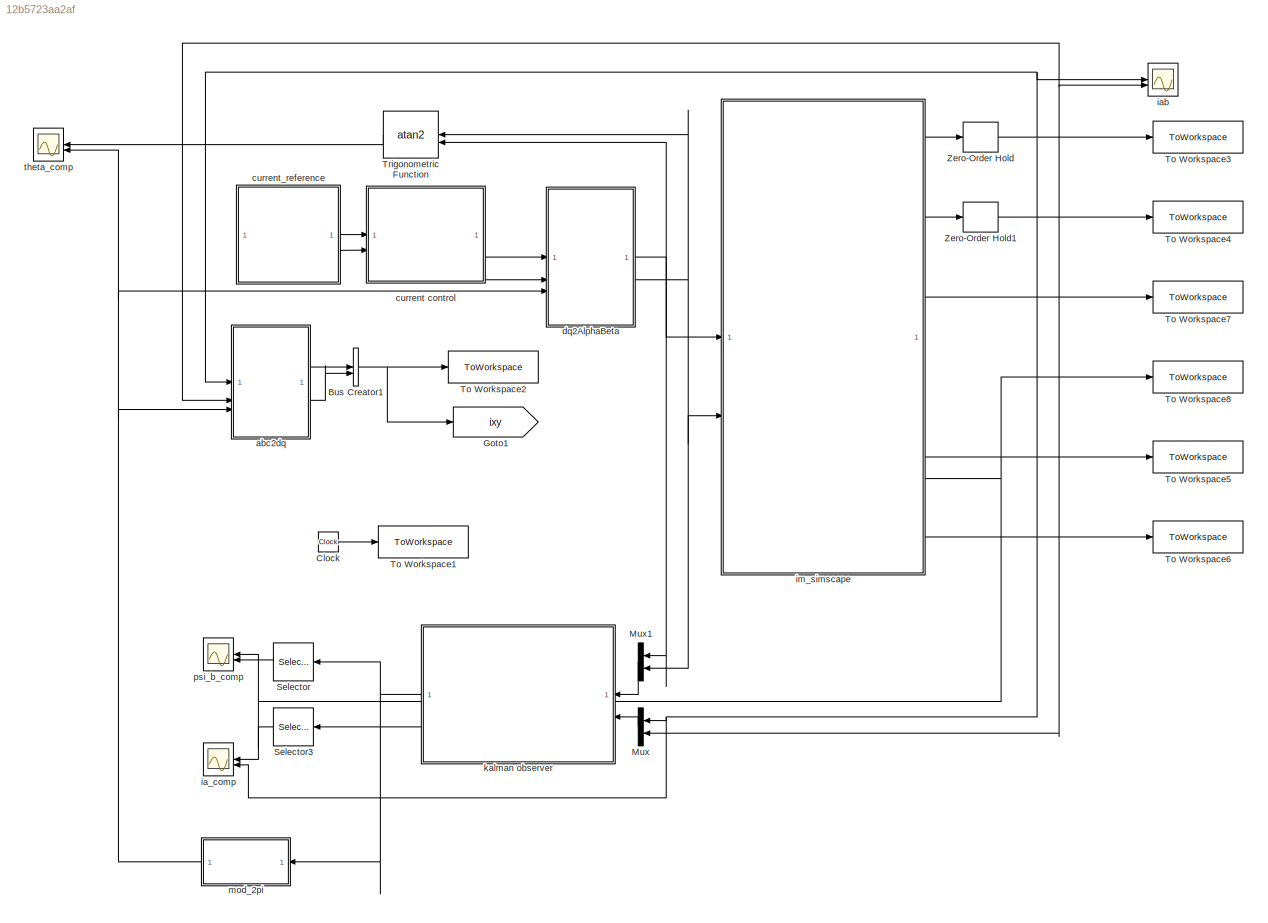
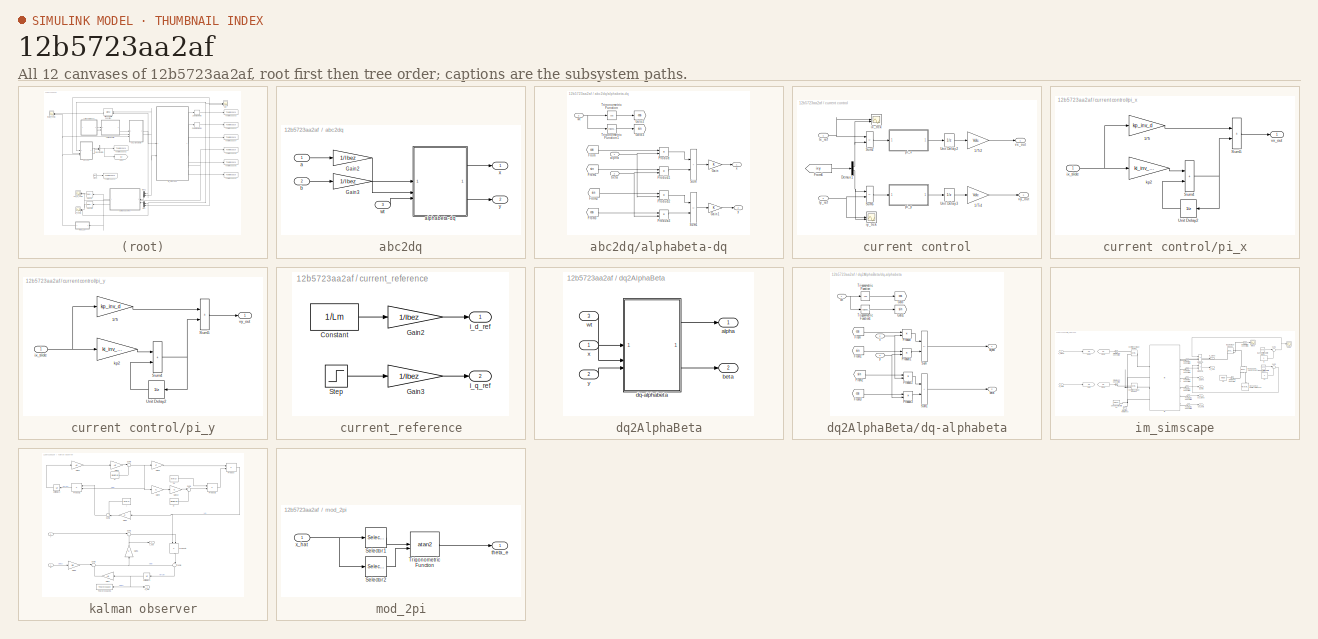
[diagram: thumbnail index - all 12 canvases of the model, root first then tree order]
MODEL slx_12b5723aa2af
KIND model
CONFIG AbsTol = auto
CONFIG EnableMultiTasking = off
CONFIG FixedStep = auto
CONFIG MaxStep = Tc
CONFIG MinStep = auto
CONFIG RelTol = Tc
CONFIG SampleTimeConstraint = Unconstrained
CONFIG SolverName = daessc
CONFIG StartTime = 0.0
CONFIG StopTime = simlength
BLOCK [BusCreator] Bus Creator1
  DisplayOption = bar
  InheritFromInputs = on
  Inputs = 2
BLOCK [Clock] Clock
BLOCK [Goto] Goto1
  GotoTag = ixy
  TagVisibility = global
BLOCK [Mux] Mux
  DisplayOption = bar
  Inputs = 2
  NameLocation = top
BLOCK [Mux] Mux1
  DisplayOption = bar
  Inputs = 2
  NameLocation = top
BLOCK [Selector] Selector
  IndexOptions = Index vector (dialog)
  Indices = 4
  InputPortWidth = 4
  OutputSizes = 1
BLOCK [Selector] Selector3
  IndexOptions = Index vector (dialog)
  Indices = 1
  InputPortWidth = 2
  OutputSizes = 1
BLOCK [ToWorkspace] To Workspace1
  MaxDataPoints = Nc
  SampleTime = Tc
  VariableName = t
BLOCK [ToWorkspace] To Workspace2
  MaxDataPoints = Nc
  SampleTime = Tc
  VariableName = ixy
BLOCK [ToWorkspace] To Workspace3
  MaxDataPoints = Nc
  SampleTime = Tc
  VariableName = is_alpha
BLOCK [ToWorkspace] To Workspace4
  MaxDataPoints = Nc
  SampleTime = Tc
  VariableName = is_beta
BLOCK [ToWorkspace] To Workspace5
  MaxDataPoints = Nc
  SampleTime = Tc
  VariableName = ir_alpha
BLOCK [ToWorkspace] To Workspace6
  MaxDataPoints = Nc
  SampleTime = Tc
  VariableName = ir_beta
BLOCK [ToWorkspace] To Workspace7
  MaxDataPoints = Nc
  SampleTime = Tc
  VariableName = phi_alpha
BLOCK [ToWorkspace] To Workspace8
  MaxDataPoints = Nc
  SampleTime = Tc
  VariableName = phi_beta
BLOCK [Trigonometry] Trigonometric Function
  NameLocation = top
  Operator = atan2
BLOCK [ZeroOrderHold] Zero-Order Hold
  SampleTime = Ts
BLOCK [ZeroOrderHold] Zero-Order Hold1
  SampleTime = Ts
BLOCK [SubSystem] abc2dq
BLOCK [Gain] abc2dq/Gain2
  Gain = 1/Ibez
BLOCK [Gain] abc2dq/Gain3
  Gain = 1/Ibez
BLOCK [Inport] abc2dq/a
BLOCK [SubSystem] abc2dq/alphabeta-dq
BLOCK [From] abc2dq/alphabeta-dq/From
  CloseFcn = tagdialog Close
  GotoTag = cos
BLOCK [From] abc2dq/alphabeta-dq/From1
  CloseFcn = tagdialog Close
  GotoTag = sin
BLOCK [From] abc2dq/alphabeta-dq/From2
  CloseFcn = tagdialog Close
  GotoTag = sin
BLOCK [From] abc2dq/alphabeta-dq/From3
  CloseFcn = tagdialog Close
  GotoTag = cos
BLOCK [Gain] abc2dq/alphabeta-dq/Gain
BLOCK [Gain] abc2dq/alphabeta-dq/Gain1
BLOCK [Goto] abc2dq/alphabeta-dq/Goto2
  GotoTag = cos
BLOCK [Goto] abc2dq/alphabeta-dq/Goto3
  GotoTag = sin
BLOCK [Product] abc2dq/alphabeta-dq/Product
  RndMeth = Zero
BLOCK [Product] abc2dq/alphabeta-dq/Product1
  RndMeth = Zero
BLOCK [Product] abc2dq/alphabeta-dq/Product2
  RndMeth = Zero
BLOCK [Product] abc2dq/alphabeta-dq/Product3
  RndMeth = Zero
BLOCK [Sum] abc2dq/alphabeta-dq/Sum
  IconShape = rectangular
BLOCK [Sum] abc2dq/alphabeta-dq/Sum1
  IconShape = rectangular
  Inputs = -+
BLOCK [Trigonometry] abc2dq/alphabeta-dq/Trigonometric Function
  Operator = cos
BLOCK [Trigonometry] abc2dq/alphabeta-dq/Trigonometric Function1
BLOCK [Inport] abc2dq/alphabeta-dq/alpha
BLOCK [Inport] abc2dq/alphabeta-dq/beta
  Port = 2
BLOCK [Inport] abc2dq/alphabeta-dq/wt
  Port = 3
BLOCK [Outport] abc2dq/alphabeta-dq/x
  VectorParamsAs1DForOutWhenUnconnected = off
BLOCK [Outport] abc2dq/alphabeta-dq/y
  Port = 2
  VectorParamsAs1DForOutWhenUnconnected = off
BLOCK [Inport] abc2dq/b
  Port = 2
BLOCK [Inport] abc2dq/wt
  Port = 3
BLOCK [Outport] abc2dq/x
  VectorParamsAs1DForOutWhenUnconnected = off
BLOCK [Outport] abc2dq/y
  Port = 2
  VectorParamsAs1DForOutWhenUnconnected = off
BLOCK [SubSystem] current control
BLOCK [Gain] current control/1//Ti2
  Gain = Vdc
  OutDataTypeStr = Inherit: Same as input
  ParamDataTypeStr = Inherit: Same as input
  SaturateOnIntegerOverflow = on
BLOCK [Gain] current control/1//Ti4
  Gain = Vdc
  OutDataTypeStr = Inherit: Same as input
  ParamDataTypeStr = Inherit: Same as input
  SaturateOnIntegerOverflow = on
BLOCK [Demux] current control/Demux1
  Outputs = 2
BLOCK [From] current control/From6
  GotoTag = ixy
  TagVisibility = global
BLOCK [Inport] current control/Ix_ref
BLOCK [Inport] current control/Iy_ref
  Port = 2
BLOCK [Sum] current control/Sum2
  IconShape = rectangular
  Inputs = +-
  SaturateOnIntegerOverflow = on
BLOCK [Sum] current control/Sum5
  IconShape = rectangular
  Inputs = -+
  SaturateOnIntegerOverflow = on
BLOCK [UnitDelay] current control/Unit Delay2
  HasFrameUpgradeWarning = on
  NameLocation = top
  SampleTime = Ts
BLOCK [UnitDelay] current control/Unit Delay3
  HasFrameUpgradeWarning = on
  NameLocation = top
  SampleTime = Ts
BLOCK [Scope] current control/ix_trck
  ActiveDisplayYMaximum = 0.72674
  ActiveDisplayYMinimum = 0.20638
  ContainerLayout = {"WindowBounds":[384,156,1280,768],"gridDimensions":{"w":1,"h":1},"tileCount":1,"tileCoverage":1,"columnWeights":1,"rowWeights":1,"tileOccupancy":{"children":[{"id":"/im_simscape/noise"},{"id":"/psi_b_comp"},{"id":"/theta_comp"},{"id":"/current control/ix_trck"},{"id":"/im_simscape/torque"},{"id":"/ia_comp"},{"id":"/iab"}]}}  <repeated x7 — deduplicated; at blocks: ix_trck, ia_comp, iab, noise, torque, psi_b_comp, theta_comp>
  DataLoggingVariableName = ScopeData1
  Floating = off
  GraphicalSettings = {"Style":{"BackgroundColor":[0.12941176470588237,0.12941176470588237,0.12941176470588237],"AxesColor":[0.07058823529411765,0.07058823529411765,0.07058823529411765],"LabelsColor":[0.8509803921568627,0.8509803921568627,0.8509803921568627],"PreserveColors":false,"Visible":[true,true],"LineStyle":["-","-"],"LineWidth":[1.5,1.5],"BarWidth":[0.9,0.9],"LineColor":["auto","auto"],"LineFaceAlpha":[1,1],"Li...<+2060ch>
  MultipleDisplayCache = [{"MaxYLimMag":0.72674,"MaxYLimReal":0.72674,"MinYLimMag":0.20638,"MinYLimReal":0.20638,"PlotAsMagnitudePhase":false,"ShowGrid":true,"ShowLegend":true,"Title":"%<SignalLabel>","YLabel":""}]
  NumInputPorts = 2
  ScopeFrameLocation = container
  ShowLegend = on
  Visible = on
  WasSavedAsWebScope = on
  WindowPosition = [384.000000,156.000000,1280.000000,768.000000,]
BLOCK [Scope] current control/iy_trck
  ActiveDisplayYMaximum = 1.1565
  ActiveDisplayYMinimum = -0.16299
  DataLoggingVariableName = ScopeData2
  Floating = off
  GraphicalSettings = {"GraphicalSettings":{"LegacySettings":true,"Style":{"AxesScalingProperties":{"ScaleAxesLimitsAtStop":false},"Style":{"AxesColor":"[0 0 0]","ChannelNames":[""],"ColorOrder":"[1 1 0.0666666666666667;0.0745098039215686 0.623529411764706 1;1 0.411764705882353 0.16078431372549;0.392156862745098 0.831372549019608 0.0745098039215686;0.717647058823529 0.274509803921569 1;0.0588235294117647 1 1;1 0.074509...<+462ch>
  MultipleDisplayCache = [{"MaxYLimMag":1.1565,"MaxYLimReal":1.1565,"MinYLimMag":0,"MinYLimReal":-0.16299,"PlotAsMagnitudePhase":false,"ShowGrid":true,"ShowLegend":false,"Title":"%<SignalLabel>","YLabel":""}]
  NumInputPorts = 2
  WasSavedAsWebScope = on
BLOCK [SubSystem] current control/pi_x
BLOCK [Gain] current control/pi_x/1//Ti
  Gain = kp_inv_d
  OutDataTypeStr = Inherit: Same as input
  ParamDataTypeStr = Inherit: Same as input
  SaturateOnIntegerOverflow = on
BLOCK [Sum] current control/pi_x/Sum4
  IconShape = rectangular
  SaturateOnIntegerOverflow = on
BLOCK [Sum] current control/pi_x/Sum5
  IconShape = rectangular
  SaturateOnIntegerOverflow = on
BLOCK [UnitDelay] current control/pi_x/Unit Delay2
  HasFrameUpgradeWarning = on
  SampleTime = Ts
BLOCK [Inport] current control/pi_x/ix_tilde
BLOCK [Gain] current control/pi_x/kp2
  Gain = ki_inv_d*Ts
  OutDataTypeStr = Inherit: Same as input
  ParamDataTypeStr = Inherit: Same as input
  SaturateOnIntegerOverflow = on
BLOCK [Outport] current control/pi_x/vx_out
  VectorParamsAs1DForOutWhenUnconnected = off
BLOCK [SubSystem] current control/pi_y
BLOCK [Gain] current control/pi_y/1//Ti
  Gain = kp_inv_d
  OutDataTypeStr = Inherit: Same as input
  ParamDataTypeStr = Inherit: Same as input
  SaturateOnIntegerOverflow = on
BLOCK [Sum] current control/pi_y/Sum4
  IconShape = rectangular
  SaturateOnIntegerOverflow = on
BLOCK [Sum] current control/pi_y/Sum5
  IconShape = rectangular
  SaturateOnIntegerOverflow = on
BLOCK [UnitDelay] current control/pi_y/Unit Delay2
  HasFrameUpgradeWarning = on
  SampleTime = Ts
BLOCK [Inport] current control/pi_y/ix_tilde
BLOCK [Gain] current control/pi_y/kp2
  Gain = ki_inv_d*Ts
  OutDataTypeStr = Inherit: Same as input
  ParamDataTypeStr = Inherit: Same as input
  SaturateOnIntegerOverflow = on
BLOCK [Outport] current control/pi_y/vy_out
  VectorParamsAs1DForOutWhenUnconnected = off
BLOCK [Outport] current control/vx_out
  VectorParamsAs1DForOutWhenUnconnected = off
BLOCK [Outport] current control/vy_out
  Port = 2
  VectorParamsAs1DForOutWhenUnconnected = off
BLOCK [SubSystem] current_reference
BLOCK [Constant] current_reference/Constant
  Value = 1/Lm
BLOCK [Gain] current_reference/Gain2
  Gain = 1/Ibez
BLOCK [Gain] current_reference/Gain3
  Gain = 1/Ibez
BLOCK [Step] current_reference/Step
  After = sqrt(Inom^2-Im^2)*sqrt(2)
  SampleTime = 0
  Time = start_load
BLOCK [Outport] current_reference/i_d_ref
BLOCK [Outport] current_reference/i_q_ref
  Port = 2
BLOCK [SubSystem] dq2AlphaBeta
BLOCK [Outport] dq2AlphaBeta/alpha
  VectorParamsAs1DForOutWhenUnconnected = off
BLOCK [Outport] dq2AlphaBeta/beta
  Port = 2
  VectorParamsAs1DForOutWhenUnconnected = off
BLOCK [SubSystem] dq2AlphaBeta/dq-alphabeta
BLOCK [From] dq2AlphaBeta/dq-alphabeta/From
  CloseFcn = tagdialog Close
  GotoTag = cos
BLOCK [From] dq2AlphaBeta/dq-alphabeta/From1
  CloseFcn = tagdialog Close
  GotoTag = sin
BLOCK [From] dq2AlphaBeta/dq-alphabeta/From2
  CloseFcn = tagdialog Close
  GotoTag = sin
BLOCK [From] dq2AlphaBeta/dq-alphabeta/From3
  CloseFcn = tagdialog Close
  GotoTag = cos
BLOCK [Goto] dq2AlphaBeta/dq-alphabeta/Goto
  GotoTag = cos
BLOCK [Goto] dq2AlphaBeta/dq-alphabeta/Goto1
  GotoTag = sin
BLOCK [Product] dq2AlphaBeta/dq-alphabeta/Product
  RndMeth = Zero
BLOCK [Product] dq2AlphaBeta/dq-alphabeta/Product1
  RndMeth = Zero
BLOCK [Product] dq2AlphaBeta/dq-alphabeta/Product2
  RndMeth = Zero
BLOCK [Product] dq2AlphaBeta/dq-alphabeta/Product3
  RndMeth = Zero
BLOCK [Sum] dq2AlphaBeta/dq-alphabeta/Sum
  IconShape = rectangular
  Inputs = +-
BLOCK [Sum] dq2AlphaBeta/dq-alphabeta/Sum1
  IconShape = rectangular
BLOCK [Trigonometry] dq2AlphaBeta/dq-alphabeta/Trigonometric Function
  Operator = cos
BLOCK [Trigonometry] dq2AlphaBeta/dq-alphabeta/Trigonometric Function1
BLOCK [Outport] dq2AlphaBeta/dq-alphabeta/alpha
  VectorParamsAs1DForOutWhenUnconnected = off
BLOCK [Outport] dq2AlphaBeta/dq-alphabeta/beta
  Port = 2
  VectorParamsAs1DForOutWhenUnconnected = off
BLOCK [Inport] dq2AlphaBeta/dq-alphabeta/wt
BLOCK [Inport] dq2AlphaBeta/dq-alphabeta/x
  Port = 2
BLOCK [Inport] dq2AlphaBeta/dq-alphabeta/y
  Port = 3
BLOCK [Inport] dq2AlphaBeta/wt
  Port = 3
BLOCK [Inport] dq2AlphaBeta/x
BLOCK [Inport] dq2AlphaBeta/y
  Port = 2
BLOCK [Scope] ia_comp
  ActiveDisplayYMaximum = 2745.620661883479
  ActiveDisplayYMinimum = -1099.3046905610083
  DataLoggingVariableName = ScopeData3
  Floating = off
  GraphicalSettings = {"Style":{"BackgroundColor":[0.12941176470588237,0.12941176470588237,0.12941176470588237],"AxesColor":[0.07058823529411765,0.07058823529411765,0.07058823529411765],"LabelsColor":[0.8509803921568627,0.8509803921568627,0.8509803921568627],"PreserveColors":false,"Visible":[true,true],"LineStyle":["-","-"],"LineWidth":[1.5,1.5],"BarWidth":[0.9,0.9],"LineColor":["auto","auto"],"LineFaceAlpha":[1,1],"Li...<+2130ch>
  MultipleDisplayCache = [{"MaxYLimMag":2745.620661883479,"MaxYLimReal":2745.620661883479,"MinYLimMag":0,"MinYLimReal":-1099.3046905610083,"PlotAsMagnitudePhase":false,"ShowGrid":true,"ShowLegend":true,"Title":"%<SignalLabel>","YLabel":""}]
  NameLocation = top
  NumInputPorts = 2
  ScopeFrameLocation = container
  ShowLegend = on
  Visible = on
  WasSavedAsWebScope = on
  WindowPosition = [384.000000,156.000000,1280.000000,768.000000,]
BLOCK [Scope] iab
  ActiveDisplayYMaximum = 667.17944
  ActiveDisplayYMinimum = -896.39173
  DataLoggingVariableName = ScopeData1
  Floating = off
  GraphicalSettings = {"Style":{"BackgroundColor":[0.12941176470588237,0.12941176470588237,0.12941176470588237],"AxesColor":[0.07058823529411765,0.07058823529411765,0.07058823529411765],"LabelsColor":[0.8509803921568627,0.8509803921568627,0.8509803921568627],"PreserveColors":false,"Visible":[true,true],"LineStyle":["-","-"],"LineWidth":[1.5,1.5],"BarWidth":[0.9,0.9],"LineColor":["auto","auto"],"LineFaceAlpha":[1,1],"Li...<+2096ch>
  MultipleDisplayCache = [{"MaxYLimMag":896.39173,"MaxYLimReal":667.17944,"MinYLimMag":0,"MinYLimReal":-896.39173,"PlotAsMagnitudePhase":false,"ShowGrid":true,"ShowLegend":false,"Title":"%<SignalLabel>","YLabel":""}]
  NumInputPorts = 2
  ScopeFrameLocation = container
  Visible = on
  WasSavedAsWebScope = on
  WindowPosition = [384.000000,156.000000,1280.000000,768.000000,]
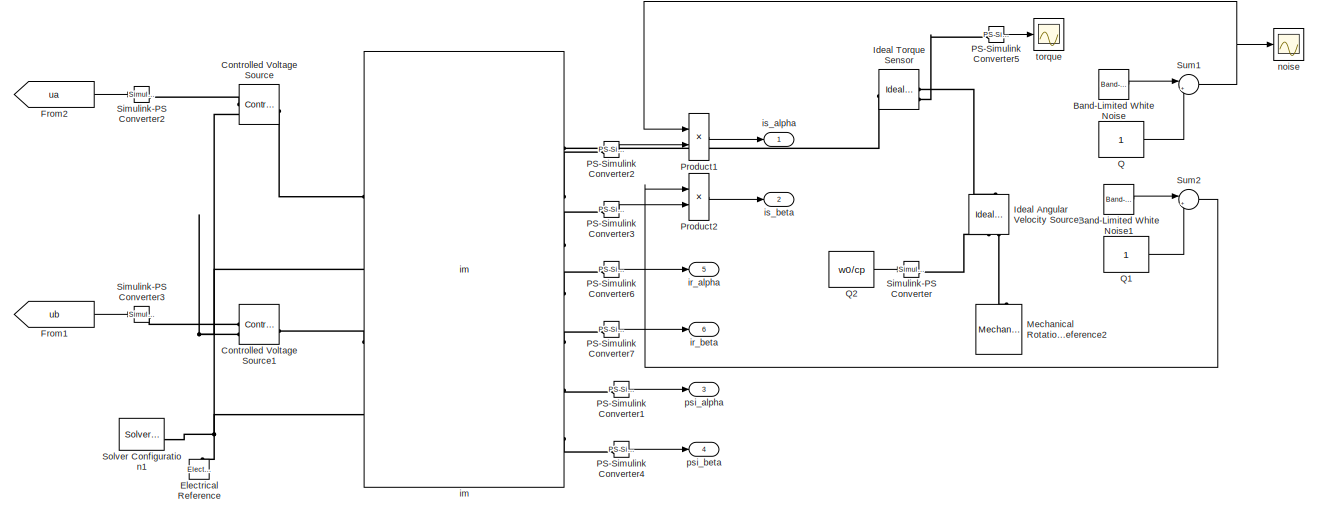
[diagram: im_simscape - part 1/2, most of the canvas]
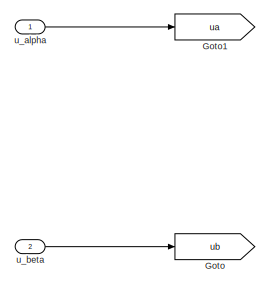
[diagram: im_simscape - part 2/2, middle left region]
BLOCK [SubSystem] im_simscape
BLOCK [Reference] im_simscape/Band-Limited White Noise  REF=simulink/Sources/Band-Limited
White Noise
  SourceBlock = simulink/Sources/Band-Limited\nWhite Noise
  SourceType = Band-Limited White Noise.
BLOCK [Reference] im_simscape/Band-Limited White Noise1  REF=simulink/Sources/Band-Limited
White Noise
  SourceBlock = simulink/Sources/Band-Limited\nWhite Noise
  SourceType = Band-Limited White Noise.
BLOCK [Reference] im_simscape/Controlled Voltage Source  REF=fl_lib/Electrical/Electrical Sources/Controlled Voltage
Source
  SourceBlock = fl_lib/Electrical/Electrical Sources/Controlled Voltage\nSource
  SourceType = Controlled Voltage\nSource
BLOCK [Reference] im_simscape/Controlled Voltage Source1  REF=fl_lib/Electrical/Electrical Sources/Controlled Voltage
Source
  SourceBlock = fl_lib/Electrical/Electrical Sources/Controlled Voltage\nSource
  SourceType = Controlled Voltage\nSource
BLOCK [Reference] im_simscape/Electrical Reference  REF=fl_lib/Electrical/Electrical Elements/Electrical Reference
  NameLocation = right
  SourceBlock = fl_lib/Electrical/Electrical Elements/Electrical Reference
  SourceType = Electrical Reference
BLOCK [From] im_simscape/From1
  GotoTag = ub
BLOCK [From] im_simscape/From2
  GotoTag = ua
BLOCK [Goto] im_simscape/Goto
  GotoTag = ub
BLOCK [Goto] im_simscape/Goto1
  GotoTag = ua
BLOCK [Reference] im_simscape/Ideal Angular Velocity Source  REF=fl_lib/Mechanical/Mechanical Sources/Ideal Angular
Velocity Source
  NameLocation = right
  SourceBlock = fl_lib/Mechanical/Mechanical Sources/Ideal Angular\nVelocity Source
  SourceType = Ideal Angular\nVelocity Source
BLOCK [Reference] im_simscape/Ideal Torque Sensor  REF=fl_lib/Mechanical/Mechanical Sensors/Ideal Torque Sensor
  SourceBlock = fl_lib/Mechanical/Mechanical Sensors/Ideal Torque Sensor
  SourceType = Ideal Torque Sensor
BLOCK [Reference] im_simscape/Mechanical Rotational Reference2  REF=fl_lib/Mechanical/Rotational Elements/Mechanical
Rotational Reference
  NameLocation = right
  SourceBlock = fl_lib/Mechanical/Rotational Elements/Mechanical\nRotational Reference
  SourceType = Mechanical\nRotational Reference
BLOCK [Reference] im_simscape/PS-Simulink Converter1  REF=nesl_utility/PS-Simulink
Converter
  SourceBlock = nesl_utility/PS-Simulink\nConverter
  SourceType = PS-Simulink\nConverter
BLOCK [Reference] im_simscape/PS-Simulink Converter2  REF=nesl_utility/PS-Simulink
Converter
  SourceBlock = nesl_utility/PS-Simulink\nConverter
  SourceType = PS-Simulink\nConverter
BLOCK [Reference] im_simscape/PS-Simulink Converter3  REF=nesl_utility/PS-Simulink
Converter
  NameLocation = top
  SourceBlock = nesl_utility/PS-Simulink\nConverter
  SourceType = PS-Simulink\nConverter
BLOCK [Reference] im_simscape/PS-Simulink Converter4  REF=nesl_utility/PS-Simulink
Converter
  NameLocation = top
  SourceBlock = nesl_utility/PS-Simulink\nConverter
  SourceType = PS-Simulink\nConverter
BLOCK [Reference] im_simscape/PS-Simulink Converter5  REF=nesl_utility/PS-Simulink
Converter
  SourceBlock = nesl_utility/PS-Simulink\nConverter
  SourceType = PS-Simulink\nConverter
BLOCK [Reference] im_simscape/PS-Simulink Converter6  REF=nesl_utility/PS-Simulink
Converter
  SourceBlock = nesl_utility/PS-Simulink\nConverter
  SourceType = PS-Simulink\nConverter
BLOCK [Reference] im_simscape/PS-Simulink Converter7  REF=nesl_utility/PS-Simulink
Converter
  NameLocation = top
  SourceBlock = nesl_utility/PS-Simulink\nConverter
  SourceType = PS-Simulink\nConverter
BLOCK [Product] im_simscape/Product1
BLOCK [Product] im_simscape/Product2
BLOCK [Constant] im_simscape/Q
BLOCK [Constant] im_simscape/Q1
BLOCK [Constant] im_simscape/Q2
  Value = w0/cp
BLOCK [Reference] im_simscape/Simulink-PS Converter  REF=nesl_utility/Simulink-PS
Converter
  SourceBlock = nesl_utility/Simulink-PS\nConverter
  SourceType = Simulink-PS\nConverter
BLOCK [Reference] im_simscape/Simulink-PS Converter2  REF=nesl_utility/Simulink-PS
Converter
  SourceBlock = nesl_utility/Simulink-PS\nConverter
  SourceType = Simulink-PS\nConverter
BLOCK [Reference] im_simscape/Simulink-PS Converter3  REF=nesl_utility/Simulink-PS
Converter
  SourceBlock = nesl_utility/Simulink-PS\nConverter
  SourceType = Simulink-PS\nConverter
BLOCK [Reference] im_simscape/Solver Configuration1  REF=nesl_utility/Solver
Configuration
  SourceBlock = nesl_utility/Solver\nConfiguration
  SourceType = Solver\nConfiguration
BLOCK [Sum] im_simscape/Sum1
  Inputs = |++
BLOCK [Sum] im_simscape/Sum2
  Inputs = |++
BLOCK [Reference] im_simscape/im  REF=im_lib/im
  SourceBlock = im_lib/im
  SourceType = im
BLOCK [Outport] im_simscape/ir_alpha
  Port = 5
BLOCK [Outport] im_simscape/ir_beta
  Port = 6
BLOCK [Outport] im_simscape/is_alpha
BLOCK [Outport] im_simscape/is_beta
  Port = 2
BLOCK [Scope] im_simscape/noise
  ActiveDisplayYMaximum = 1.17211
  ActiveDisplayYMinimum = 0.87016
  DataLoggingVariableName = ScopeData3
  Floating = off
  GraphicalSettings = {"Style":{"BackgroundColor":[0.12941176470588237,0.12941176470588237,0.12941176470588237],"AxesColor":[0.07058823529411765,0.07058823529411765,0.07058823529411765],"LabelsColor":[0.8509803921568627,0.8509803921568627,0.8509803921568627],"PreserveColors":false,"Visible":[true],"LineStyle":["-"],"LineWidth":[0.75],"BarWidth":[0.9],"LineColor":["auto"],"LineFaceAlpha":[1],"LineEdgeAlpha":[1],"Marker"...<+1940ch>
  MultipleDisplayCache = [{"MaxYLimMag":1.17211,"MaxYLimReal":1.17211,"MinYLimMag":0.87016,"MinYLimReal":0.87016,"PlotAsMagnitudePhase":false,"ShowGrid":true,"ShowLegend":true,"Title":"%<SignalLabel>","YLabel":""}]
  NumInputPorts = 1
  ScopeFrameLocation = container
  ShowLegend = on
  Visible = on
  WasSavedAsWebScope = on
  WindowPosition = [384.000000,156.000000,1280.000000,768.000000,]
BLOCK [Outport] im_simscape/psi_alpha
  Port = 3
BLOCK [Outport] im_simscape/psi_beta
  Port = 4
BLOCK [Scope] im_simscape/torque
  ActiveDisplayYMaximum = 27994.54384
  ActiveDisplayYMinimum = -225649.75684
  DataLoggingVariableName = ScopeData1
  Floating = off
  GraphicalSettings = {"Style":{"BackgroundColor":[0.12941176470588237,0.12941176470588237,0.12941176470588237],"AxesColor":[0.07058823529411765,0.07058823529411765,0.07058823529411765],"LabelsColor":[0.8509803921568627,0.8509803921568627,0.8509803921568627],"PreserveColors":false,"Visible":[true],"LineStyle":["-"],"LineWidth":[0.75],"BarWidth":[0.9],"LineColor":["auto"],"LineFaceAlpha":[1],"LineEdgeAlpha":[1],"Marker"...<+1992ch>
  MultipleDisplayCache = [{"MaxYLimMag":225649.75684,"MaxYLimReal":27994.54384,"MinYLimMag":0,"MinYLimReal":-225649.75684,"PlotAsMagnitudePhase":false,"ShowGrid":true,"ShowLegend":true,"Title":"%<SignalLabel>","YLabel":""}]
  NumInputPorts = 1
  ScopeFrameLocation = container
  ShowLegend = on
  Visible = on
  WasSavedAsWebScope = on
  WindowPosition = [384.000000,156.000000,1280.000000,768.000000,]
BLOCK [Inport] im_simscape/u_alpha
BLOCK [Inport] im_simscape/u_beta
  Port = 2
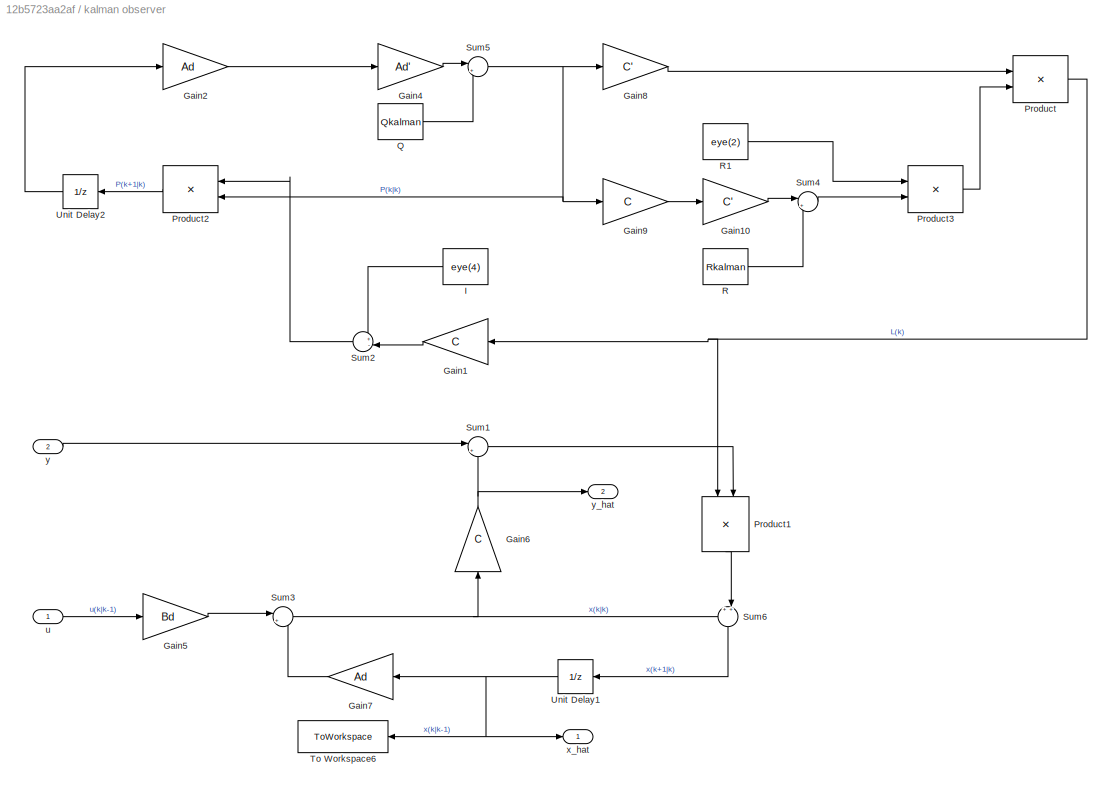
BLOCK [SubSystem] kalman observer
BLOCK [Gain] kalman observer/Gain1
  Gain = C
  Multiplication = Matrix(u*K)
  NameLocation = top
BLOCK [Gain] kalman observer/Gain10
  Gain = C'
  Multiplication = Matrix(u*K)
BLOCK [Gain] kalman observer/Gain2
  Gain = Ad
  Multiplication = Matrix(K*u)
  NameLocation = top
BLOCK [Gain] kalman observer/Gain4
  Gain = Ad'
  Multiplication = Matrix(u*K)
  NameLocation = top
BLOCK [Gain] kalman observer/Gain5
  Gain = Bd
  Multiplication = Matrix(K*u)
BLOCK [Gain] kalman observer/Gain6
  Gain = C
  Multiplication = Matrix(K*u)
  NameLocation = right
BLOCK [Gain] kalman observer/Gain7
  Gain = Ad
  Multiplication = Matrix(K*u)
BLOCK [Gain] kalman observer/Gain8
  Gain = C'
  Multiplication = Matrix(u*K)
BLOCK [Gain] kalman observer/Gain9
  Gain = C
  Multiplication = Matrix(K*u)
BLOCK [Constant] kalman observer/I
  Value = eye(4)
BLOCK [Product] kalman observer/Product
  Multiplication = Matrix(*)
BLOCK [Product] kalman observer/Product1
  Multiplication = Matrix(*)
  NameLocation = left
BLOCK [Product] kalman observer/Product2
  Multiplication = Matrix(*)
  NameLocation = top
BLOCK [Product] kalman observer/Product3
  Inputs = */
  Multiplication = Matrix(*)
BLOCK [Constant] kalman observer/Q
  Value = Qkalman
BLOCK [Constant] kalman observer/R
  Value = Rkalman
BLOCK [Constant] kalman observer/R1
  Value = eye(2)
BLOCK [Sum] kalman observer/Sum1
  Inputs = |+-
BLOCK [Sum] kalman observer/Sum2
  Inputs = +-|
  NameLocation = top
BLOCK [Sum] kalman observer/Sum3
  Inputs = |++
BLOCK [Sum] kalman observer/Sum4
  Inputs = |++
BLOCK [Sum] kalman observer/Sum5
  Inputs = |++
BLOCK [Sum] kalman observer/Sum6
  Inputs = ++|
  NameLocation = left
BLOCK [ToWorkspace] kalman observer/To Workspace6
  MaxDataPoints = Nc
  NameLocation = top
  SampleTime = Tc
  VariableName = x_hat
BLOCK [UnitDelay] kalman observer/Unit Delay1
  HasFrameUpgradeWarning = on
  InitialCondition = [0 0 1 0]
  SampleTime = Ts
BLOCK [UnitDelay] kalman observer/Unit Delay2
  HasFrameUpgradeWarning = on
  InitialCondition = Qkalman
  SampleTime = Ts
BLOCK [Inport] kalman observer/u
BLOCK [Outport] kalman observer/x_hat
BLOCK [Inport] kalman observer/y
  Port = 2
BLOCK [Outport] kalman observer/y_hat
  Port = 2
BLOCK [SubSystem] mod_2pi
BLOCK [Selector] mod_2pi/Selector1
  IndexOptions = Index vector (dialog)
  Indices = 4
  InputPortWidth = 4
  NameLocation = top
  OutputSizes = 1
BLOCK [Selector] mod_2pi/Selector2
  IndexOptions = Index vector (dialog)
  Indices = 3
  InputPortWidth = 4
  NameLocation = top
  OutputSizes = 1
BLOCK [Trigonometry] mod_2pi/Trigonometric Function
  Operator = atan2
BLOCK [Outport] mod_2pi/theta_e
BLOCK [Inport] mod_2pi/x_hat
BLOCK [Scope] psi_b_comp
  ActiveDisplayYMaximum = 1.77789
  ActiveDisplayYMinimum = -1.84097
  DataLoggingVariableName = ScopeData2
  Floating = off
  GraphicalSettings = {"Style":{"BackgroundColor":[0.12941176470588237,0.12941176470588237,0.12941176470588237],"AxesColor":[0.07058823529411765,0.07058823529411765,0.07058823529411765],"LabelsColor":[0.8509803921568627,0.8509803921568627,0.8509803921568627],"PreserveColors":false,"Visible":[true,true],"LineStyle":["-","-"],"LineWidth":[1.5,1.5],"BarWidth":[0.9,0.9],"LineColor":["auto","auto"],"LineFaceAlpha":[1,1],"Li...<+2062ch>
  MultipleDisplayCache = [{"MaxYLimMag":1.84097,"MaxYLimReal":1.77789,"MinYLimMag":0,"MinYLimReal":-1.84097,"PlotAsMagnitudePhase":false,"ShowGrid":true,"ShowLegend":true,"Title":"%<SignalLabel>","YLabel":""}]
  NameLocation = top
  NumInputPorts = 2
  ScopeFrameLocation = container
  ShowLegend = on
  Visible = on
  WasSavedAsWebScope = on
  WindowPosition = [384.000000,156.000000,1280.000000,768.000000,]
BLOCK [Scope] theta_comp
  ActiveDisplayYMaximum = 3.92642
  ActiveDisplayYMinimum = -3.92689
  DataLoggingVariableName = ScopeData1
  Floating = off
  GraphicalSettings = {"Style":{"BackgroundColor":[0.12941176470588237,0.12941176470588237,0.12941176470588237],"AxesColor":[0.07058823529411765,0.07058823529411765,0.07058823529411765],"LabelsColor":[0.8509803921568627,0.8509803921568627,0.8509803921568627],"PreserveColors":false,"Visible":[true,true],"LineStyle":["-","-"],"LineWidth":[1.5,1.5],"BarWidth":[0.9,0.9],"LineColor":["auto","auto"],"LineFaceAlpha":[1,1],"Li...<+2080ch>
  MultipleDisplayCache = [{"MaxYLimMag":3.92689,"MaxYLimReal":3.92642,"MinYLimMag":0,"MinYLimReal":-3.92689,"PlotAsMagnitudePhase":false,"ShowGrid":true,"ShowLegend":true,"Title":"%<SignalLabel>","YLabel":""}]
  NumInputPorts = 2
  ScopeFrameLocation = container
  ShowLegend = on
  Visible = on
  WasSavedAsWebScope = on
  WindowPosition = [384.000000,156.000000,1280.000000,768.000000,]
NET Bus Creator1:1 -> Goto1:1, To Workspace2:1
LINE Clock:1 -> To Workspace1:1
LINE Mux1:1 -> kalman observer:1
LINE Mux:1 -> kalman observer:2
LINE Selector3:1 -> ia_comp:1
LINE Selector:1 -> psi_b_comp:2
LINE Trigonometric Function:1 -> theta_comp:1
NET Zero-Order Hold1:1 -> Mux:2, To Workspace4:1, abc2dq:2, iab:2
NET Zero-Order Hold:1 -> Mux:1, To Workspace3:1, abc2dq:1, ia_comp:2, iab:1
LINE abc2dq/Gain2:1 -> abc2dq/alphabeta-dq:1
LINE abc2dq/Gain3:1 -> abc2dq/alphabeta-dq:2
LINE abc2dq/a:1 -> abc2dq/Gain2:1
LINE abc2dq/alphabeta-dq/From1:1 -> abc2dq/alphabeta-dq/Product1:1
LINE abc2dq/alphabeta-dq/From2:1 -> abc2dq/alphabeta-dq/Product2:1
LINE abc2dq/alphabeta-dq/From3:1 -> abc2dq/alphabeta-dq/Product3:1
LINE abc2dq/alphabeta-dq/From:1 -> abc2dq/alphabeta-dq/Product:1
LINE abc2dq/alphabeta-dq/Gain1:1 -> abc2dq/alphabeta-dq/y:1
LINE abc2dq/alphabeta-dq/Gain:1 -> abc2dq/alphabeta-dq/x:1
LINE abc2dq/alphabeta-dq/Product1:1 -> abc2dq/alphabeta-dq/Sum:2
LINE abc2dq/alphabeta-dq/Product2:1 -> abc2dq/alphabeta-dq/Sum1:1
LINE abc2dq/alphabeta-dq/Product3:1 -> abc2dq/alphabeta-dq/Sum1:2
LINE abc2dq/alphabeta-dq/Product:1 -> abc2dq/alphabeta-dq/Sum:1
LINE abc2dq/alphabeta-dq/Sum1:1 -> abc2dq/alphabeta-dq/Gain1:1
LINE abc2dq/alphabeta-dq/Sum:1 -> abc2dq/alphabeta-dq/Gain:1
LINE abc2dq/alphabeta-dq/Trigonometric Function1:1 -> abc2dq/alphabeta-dq/Goto3:1
LINE abc2dq/alphabeta-dq/Trigonometric Function:1 -> abc2dq/alphabeta-dq/Goto2:1
NET abc2dq/alphabeta-dq/alpha:1 -> abc2dq/alphabeta-dq/Product2:2, abc2dq/alphabeta-dq/Product:2
NET abc2dq/alphabeta-dq/beta:1 -> abc2dq/alphabeta-dq/Product1:2, abc2dq/alphabeta-dq/Product3:2
NET abc2dq/alphabeta-dq/wt:1 -> abc2dq/alphabeta-dq/Trigonometric Function1:1, abc2dq/alphabeta-dq/Trigonometric Function:1
LINE abc2dq/alphabeta-dq:1 -> abc2dq/x:1
LINE abc2dq/alphabeta-dq:2 -> abc2dq/y:1
LINE abc2dq/b:1 -> abc2dq/Gain3:1
LINE abc2dq/wt:1 -> abc2dq/alphabeta-dq:3
LINE abc2dq:1 -> Bus Creator1:1
LINE abc2dq:2 -> Bus Creator1:2
LINE current control/1//Ti2:1 -> current control/vx_out:1
LINE current control/1//Ti4:1 -> current control/vy_out:1
NET current control/Demux1:1 -> current control/Sum2:2, current control/ix_trck:2
NET current control/Demux1:2 -> current control/Sum5:1, current control/iy_trck:2
LINE current control/From6:1 -> current control/Demux1:1
NET current control/Ix_ref:1 -> current control/Sum2:1, current control/ix_trck:1
NET current control/Iy_ref:1 -> current control/Sum5:2, current control/iy_trck:1
LINE current control/Sum2:1 -> current control/pi_x:1
LINE current control/Sum5:1 -> current control/pi_y:1
LINE current control/Unit Delay2:1 -> current control/1//Ti2:1
LINE current control/Unit Delay3:1 -> current control/1//Ti4:1
LINE current control/pi_x/1//Ti:1 -> current control/pi_x/Sum5:1
NET current control/pi_x/Sum4:1 -> current control/pi_x/Sum5:2, current control/pi_x/Unit Delay2:1
LINE current control/pi_x/Sum5:1 -> current control/pi_x/vx_out:1
LINE current control/pi_x/Unit Delay2:1 -> current control/pi_x/Sum4:2
NET current control/pi_x/ix_tilde:1 -> current control/pi_x/1//Ti:1, current control/pi_x/kp2:1
LINE current control/pi_x/kp2:1 -> current control/pi_x/Sum4:1
LINE current control/pi_x:1 -> current control/Unit Delay2:1
LINE current control/pi_y/1//Ti:1 -> current control/pi_y/Sum5:1
NET current control/pi_y/Sum4:1 -> current control/pi_y/Sum5:2, current control/pi_y/Unit Delay2:1
LINE current control/pi_y/Sum5:1 -> current control/pi_y/vy_out:1
LINE current control/pi_y/Unit Delay2:1 -> current control/pi_y/Sum4:2
NET current control/pi_y/ix_tilde:1 -> current control/pi_y/1//Ti:1, current control/pi_y/kp2:1
LINE current control/pi_y/kp2:1 -> current control/pi_y/Sum4:1
LINE current control/pi_y:1 -> current control/Unit Delay3:1
LINE current control:1 -> dq2AlphaBeta:1
LINE current control:2 -> dq2AlphaBeta:2
LINE current_reference/Constant:1 -> current_reference/Gain2:1
LINE current_reference/Gain2:1 -> current_reference/i_d_ref:1
LINE current_reference/Gain3:1 -> current_reference/i_q_ref:1
LINE current_reference/Step:1 -> current_reference/Gain3:1
LINE current_reference:1 -> current control:1
LINE current_reference:2 -> current control:2
LINE dq2AlphaBeta/dq-alphabeta/From1:1 -> dq2AlphaBeta/dq-alphabeta/Product1:1
LINE dq2AlphaBeta/dq-alphabeta/From2:1 -> dq2AlphaBeta/dq-alphabeta/Product2:1
LINE dq2AlphaBeta/dq-alphabeta/From3:1 -> dq2AlphaBeta/dq-alphabeta/Product3:1
LINE dq2AlphaBeta/dq-alphabeta/From:1 -> dq2AlphaBeta/dq-alphabeta/Product:1
LINE dq2AlphaBeta/dq-alphabeta/Product1:1 -> dq2AlphaBeta/dq-alphabeta/Sum:2
LINE dq2AlphaBeta/dq-alphabeta/Product2:1 -> dq2AlphaBeta/dq-alphabeta/Sum1:1
LINE dq2AlphaBeta/dq-alphabeta/Product3:1 -> dq2AlphaBeta/dq-alphabeta/Sum1:2
LINE dq2AlphaBeta/dq-alphabeta/Product:1 -> dq2AlphaBeta/dq-alphabeta/Sum:1
LINE dq2AlphaBeta/dq-alphabeta/Sum1:1 -> dq2AlphaBeta/dq-alphabeta/beta:1
LINE dq2AlphaBeta/dq-alphabeta/Sum:1 -> dq2AlphaBeta/dq-alphabeta/alpha:1
LINE dq2AlphaBeta/dq-alphabeta/Trigonometric Function1:1 -> dq2AlphaBeta/dq-alphabeta/Goto1:1
LINE dq2AlphaBeta/dq-alphabeta/Trigonometric Function:1 -> dq2AlphaBeta/dq-alphabeta/Goto:1
NET dq2AlphaBeta/dq-alphabeta/wt:1 -> dq2AlphaBeta/dq-alphabeta/Trigonometric Function1:1, dq2AlphaBeta/dq-alphabeta/Trigonometric Function:1
NET dq2AlphaBeta/dq-alphabeta/x:1 -> dq2AlphaBeta/dq-alphabeta/Product2:2, dq2AlphaBeta/dq-alphabeta/Product:2
NET dq2AlphaBeta/dq-alphabeta/y:1 -> dq2AlphaBeta/dq-alphabeta/Product1:2, dq2AlphaBeta/dq-alphabeta/Product3:2
LINE dq2AlphaBeta/dq-alphabeta:1 -> dq2AlphaBeta/alpha:1
LINE dq2AlphaBeta/dq-alphabeta:2 -> dq2AlphaBeta/beta:1
LINE dq2AlphaBeta/wt:1 -> dq2AlphaBeta/dq-alphabeta:1
LINE dq2AlphaBeta/x:1 -> dq2AlphaBeta/dq-alphabeta:2
LINE dq2AlphaBeta/y:1 -> dq2AlphaBeta/dq-alphabeta:3
NET dq2AlphaBeta:1 -> Mux1:1, Trigonometric Function:2, im_simscape:1
NET dq2AlphaBeta:2 -> Mux1:2, Trigonometric Function:1, im_simscape:2
LINE im_simscape/Band-Limited White Noise1:1 -> im_simscape/Sum2:1
LINE im_simscape/Band-Limited White Noise:1 -> im_simscape/Sum1:1
LINE im_simscape/From1:1 -> im_simscape/Simulink-PS Converter3:1
LINE im_simscape/From2:1 -> im_simscape/Simulink-PS Converter2:1
LINE im_simscape/PS-Simulink Converter1:1 -> im_simscape/psi_alpha:1
LINE im_simscape/PS-Simulink Converter2:1 -> im_simscape/Product1:2
LINE im_simscape/PS-Simulink Converter3:1 -> im_simscape/Product2:2
LINE im_simscape/PS-Simulink Converter4:1 -> im_simscape/psi_beta:1
LINE im_simscape/PS-Simulink Converter5:1 -> im_simscape/torque:1
LINE im_simscape/PS-Simulink Converter6:1 -> im_simscape/ir_alpha:1
LINE im_simscape/PS-Simulink Converter7:1 -> im_simscape/ir_beta:1
LINE im_simscape/Product1:1 -> im_simscape/is_alpha:1
LINE im_simscape/Product2:1 -> im_simscape/is_beta:1
LINE im_simscape/Q1:1 -> im_simscape/Sum2:2
LINE im_simscape/Q2:1 -> im_simscape/Simulink-PS Converter:1
LINE im_simscape/Q:1 -> im_simscape/Sum1:2
NET im_simscape/Sum1:1 -> im_simscape/Product1:1, im_simscape/noise:1
LINE im_simscape/Sum2:1 -> im_simscape/Product2:1
LINE im_simscape/u_alpha:1 -> im_simscape/Goto1:1
LINE im_simscape/u_beta:1 -> im_simscape/Goto:1
LINE im_simscape:1 -> Zero-Order Hold:1
LINE im_simscape:2 -> Zero-Order Hold1:1
LINE im_simscape:3 -> To Workspace7:1
NET im_simscape:4 -> To Workspace8:1, psi_b_comp:1
LINE im_simscape:5 -> To Workspace5:1
LINE im_simscape:6 -> To Workspace6:1
LINE kalman observer/Gain10:1 -> kalman observer/Sum4:1
LINE kalman observer/Gain1:1 -> kalman observer/Sum2:2
LINE kalman observer/Gain2:1 -> kalman observer/Gain4:1
LINE kalman observer/Gain4:1 -> kalman observer/Sum5:1
LINE kalman observer/Gain5:1 -> kalman observer/Sum3:1
NET kalman observer/Gain6:1 -> kalman observer/Sum1:2, kalman observer/y_hat:1
LINE kalman observer/Gain7:1 -> kalman observer/Sum3:2
LINE kalman observer/Gain8:1 -> kalman observer/Product:1
LINE kalman observer/Gain9:1 -> kalman observer/Gain10:1
LINE kalman observer/I:1 -> kalman observer/Sum2:1
LINE kalman observer/Product1:1 -> kalman observer/Sum6:2
LINE kalman observer/Product2:1 -> kalman observer/Unit Delay2:1
LINE kalman observer/Product3:1 -> kalman observer/Product:2
NET kalman observer/Product:1 -> kalman observer/Gain1:1, kalman observer/Product1:1
LINE kalman observer/Q:1 -> kalman observer/Sum5:2
LINE kalman observer/R1:1 -> kalman observer/Product3:1
LINE kalman observer/R:1 -> kalman observer/Sum4:2
LINE kalman observer/Sum1:1 -> kalman observer/Product1:2
LINE kalman observer/Sum2:1 -> kalman observer/Product2:1
NET kalman observer/Sum3:1 -> kalman observer/Gain6:1, kalman observer/Sum6:1
LINE kalman observer/Sum4:1 -> kalman observer/Product3:2
NET kalman observer/Sum5:1 -> kalman observer/Gain8:1, kalman observer/Gain9:1, kalman observer/Product2:2
LINE kalman observer/Sum6:1 -> kalman observer/Unit Delay1:1
NET kalman observer/Unit Delay1:1 -> kalman observer/Gain7:1, kalman observer/To Workspace6:1, kalman observer/x_hat:1
LINE kalman observer/Unit Delay2:1 -> kalman observer/Gain2:1
LINE kalman observer/u:1 -> kalman observer/Gain5:1
LINE kalman observer/y:1 -> kalman observer/Sum1:1
NET kalman observer:1 -> Selector:1, mod_2pi:1
LINE kalman observer:2 -> Selector3:1
LINE mod_2pi/Selector1:1 -> mod_2pi/Trigonometric Function:1
LINE mod_2pi/Selector2:1 -> mod_2pi/Trigonometric Function:2
LINE mod_2pi/Trigonometric Function:1 -> mod_2pi/theta_e:1
NET mod_2pi/x_hat:1 -> mod_2pi/Selector1:1, mod_2pi/Selector2:1
NET mod_2pi:1 -> abc2dq:3, dq2AlphaBeta:3, theta_comp:2
PLINE im_simscape/Controlled Voltage Source1:LConn1 -- im_simscape/im:LConn3
PLINE im_simscape/Controlled Voltage Source1:RConn1 -- im_simscape/Simulink-PS Converter3:RConn1
PNET net1: im_simscape/Controlled Voltage Source1:RConn2 -- im_simscape/Controlled Voltage Source:RConn2 -- im_simscape/Electrical Reference:LConn1 -- im_simscape/Solver Configuration1:RConn1 -- im_simscape/im:LConn2 -- im_simscape/im:LConn4
PLINE im_simscape/Controlled Voltage Source:LConn1 -- im_simscape/im:LConn1
PLINE im_simscape/Controlled Voltage Source:RConn1 -- im_simscape/Simulink-PS Converter2:RConn1
PLINE im_simscape/Ideal Angular Velocity Source:LConn1 -- im_simscape/Ideal Torque Sensor:RConn1
PLINE im_simscape/Ideal Angular Velocity Source:RConn1 -- im_simscape/Simulink-PS Converter:RConn1
PLINE im_simscape/Ideal Angular Velocity Source:RConn2 -- im_simscape/Mechanical Rotational Reference2:LConn1
PLINE im_simscape/Ideal Torque Sensor:LConn1 -- im_simscape/im:RConn1
PLINE im_simscape/Ideal Torque Sensor:RConn2 -- im_simscape/PS-Simulink Converter5:LConn1
PLINE im_simscape/PS-Simulink Converter1:LConn1 -- im_simscape/im:RConn6
PLINE im_simscape/PS-Simulink Converter2:LConn1 -- im_simscape/im:RConn2
PLINE im_simscape/PS-Simulink Converter3:LConn1 -- im_simscape/im:RConn3
PLINE im_simscape/PS-Simulink Converter4:LConn1 -- im_simscape/im:RConn7
PLINE im_simscape/PS-Simulink Converter6:LConn1 -- im_simscape/im:RConn4
PLINE im_simscape/PS-Simulink Converter7:LConn1 -- im_simscape/im:RConn5
note: NET lines group one-source signal fan-out (src -> all destinations, sorted); 1:1 wires keep LINE; PNET lines group multi-terminal physical nets as a canonical sorted terminal list (undirected conserving connections); 2-terminal nets keep the pairwise PLINE form
